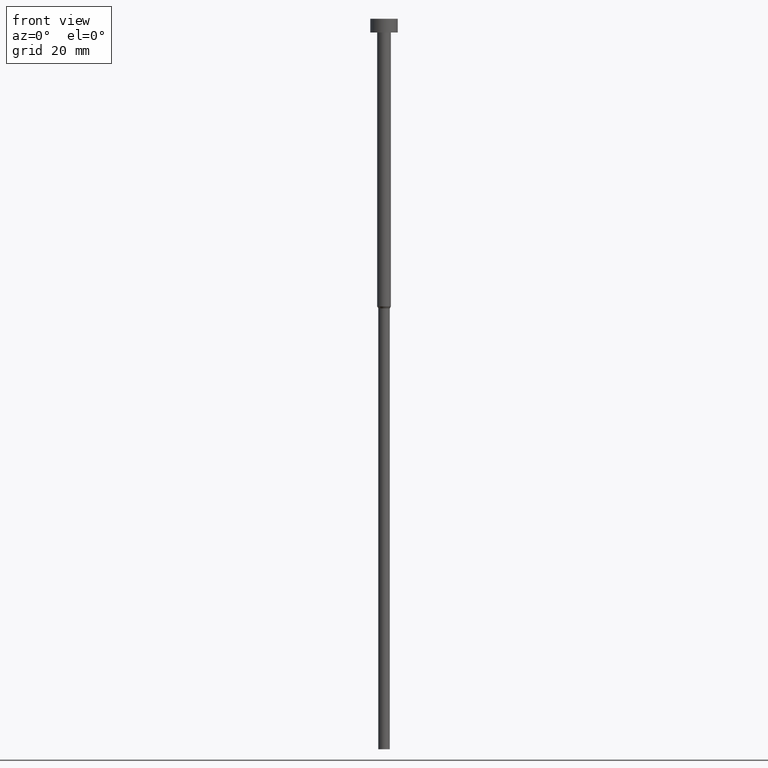
[diagram: clean part render]
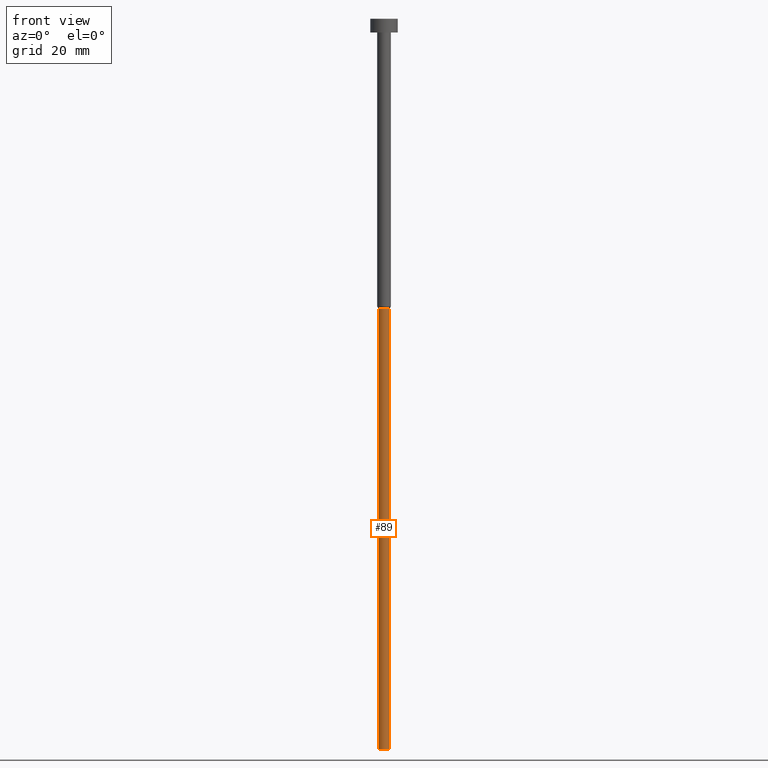
[diagram: same view with one face highlighted and labeled with its STEP entity id]
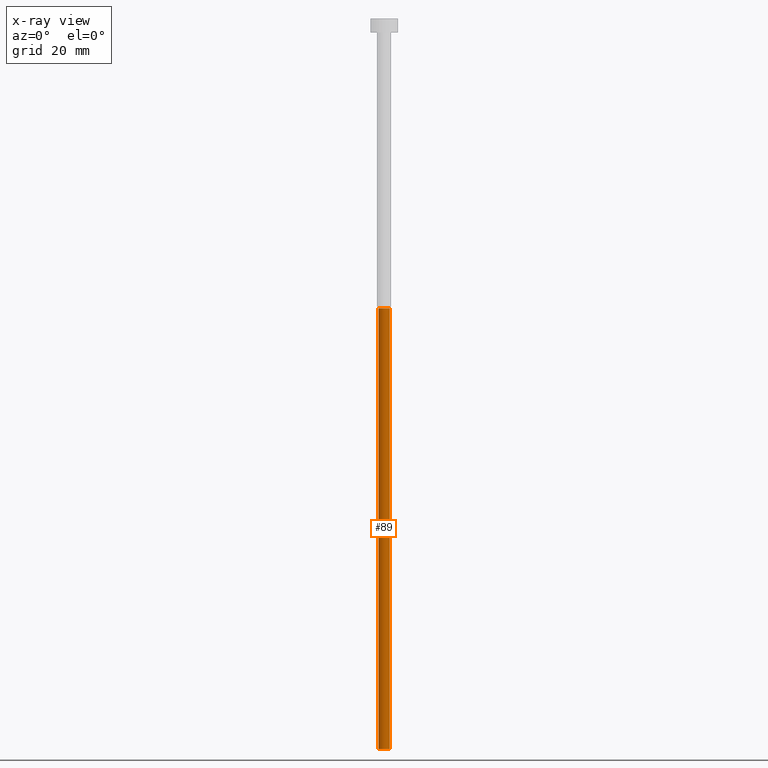
[diagram: x-ray of the same camera — body ghosted, the highlighted face saturated]
A machine part, front view. The second image highlights one B-rep face of the part: STEP entity #89.
The next image is the same camera in x-ray: the body ghosted, the highlighted face saturated — about 0% of this face is hidden behind the body in this view.
In plain terms, the highlighted cylindrical surface (edge-blend (fillet) strip) has radius 1.25 mm, axis along (-0, -0, 1).
Its self-contained STEP definition (entity closure, byte-faithful):
#5 = DIRECTION ( 'NONE',  ( -0.000000000000000000, -0.000000000000000000, 1.000000000000000000 ) ) ;
#16 = FACE_OUTER_BOUND ( 'NONE', #74, .T. ) ;
#22 = DIRECTION ( 'NONE',  ( -0.000000000000000000, -0.000000000000000000, 1.000000000000000000 ) ) ;
#60 = EDGE_CURVE ( 'NONE', #261, #96, #315, .T. ) ;
#74 = EDGE_LOOP ( 'NONE', ( #93, #209, #317, #175 ) ) ;
#75 = VECTOR ( 'NONE', #300, 1000.000000000000000 ) ;
#87 = LINE ( 'NONE', #196, #75 ) ;
#89 = ADVANCED_FACE ( 'NONE', ( #16 ), #123, .T. ) ;
#93 = ORIENTED_EDGE ( 'NONE', *, *, #218, .F. ) ;
#96 = VERTEX_POINT ( 'NONE', #320 ) ;
#97 = DIRECTION ( 'NONE',  ( -0.000000000000000000, -0.000000000000000000, 1.000000000000000000 ) ) ;
#103 = DIRECTION ( 'NONE',  ( 1.000000000000000000, 0.000000000000000000, 0.000000000000000000 ) ) ;
#107 = VECTOR ( 'NONE', #5, 1000.000000000000000 ) ;
#123 = CYLINDRICAL_SURFACE ( 'NONE', #295, 1.250000000000000000 ) ;
#125 = VERTEX_POINT ( 'NONE', #353 ) ;
#137 = DIRECTION ( 'NONE',  ( -0.000000000000000000, -0.000000000000000000, 1.000000000000000000 ) ) ;
#151 = VERTEX_POINT ( 'NONE', #197 ) ;
#154 = CARTESIAN_POINT ( 'NONE',  ( 0.000000000000000000, 0.000000000000000000, -63.43301270189222407 ) ) ;
#157 = AXIS2_PLACEMENT_3D ( 'NONE', #312, #137, #103 ) ;
#175 = ORIENTED_EDGE ( 'NONE', *, *, #60, .F. ) ;
#196 = CARTESIAN_POINT ( 'NONE',  ( 1.250000000000000000, 0.000000000000000000, 0.000000000000000000 ) ) ;
#197 = CARTESIAN_POINT ( 'NONE',  ( 1.250000000000000000, 0.000000000000000000, -160.0000000000000000 ) ) ;
#209 = ORIENTED_EDGE ( 'NONE', *, *, #302, .T. ) ;
#215 = DIRECTION ( 'NONE',  ( 1.000000000000000000, 0.000000000000000000, 0.000000000000000000 ) ) ;
#218 = EDGE_CURVE ( 'NONE', #125, #261, #349, .T. ) ;
#231 = CARTESIAN_POINT ( 'NONE',  ( -1.250000000000000000, 1.530808498934191571E-16, -63.43301270189222407 ) ) ;
#239 = CARTESIAN_POINT ( 'NONE',  ( 0.000000000000000000, 0.000000000000000000, 0.000000000000000000 ) ) ;
#254 = CARTESIAN_POINT ( 'NONE',  ( -1.250000000000000000, 1.530808498934191571E-16, 0.000000000000000000 ) ) ;
#261 = VERTEX_POINT ( 'NONE', #231 ) ;
#267 = AXIS2_PLACEMENT_3D ( 'NONE', #154, #22, #322 ) ;
#295 = AXIS2_PLACEMENT_3D ( 'NONE', #239, #97, #215 ) ;
#300 = DIRECTION ( 'NONE',  ( -0.000000000000000000, -0.000000000000000000, 1.000000000000000000 ) ) ;
#302 = EDGE_CURVE ( 'NONE', #125, #151, #340, .T. ) ;
#312 = CARTESIAN_POINT ( 'NONE',  ( 0.000000000000000000, 0.000000000000000000, -160.0000000000000000 ) ) ;
#315 = CIRCLE ( 'NONE', #267, 1.250000000000000000 ) ;
#317 = ORIENTED_EDGE ( 'NONE', *, *, #334, .T. ) ;
#320 = CARTESIAN_POINT ( 'NONE',  ( 1.250000000000000000, 0.000000000000000000, -63.43301270189222407 ) ) ;
#322 = DIRECTION ( 'NONE',  ( 1.000000000000000000, 0.000000000000000000, 0.000000000000000000 ) ) ;
#334 = EDGE_CURVE ( 'NONE', #151, #96, #87, .T. ) ;
#340 = CIRCLE ( 'NONE', #157, 1.250000000000000000 ) ;
#349 = LINE ( 'NONE', #254, #107 ) ;
#353 = CARTESIAN_POINT ( 'NONE',  ( -1.250000000000000000, 1.530808498934191571E-16, -160.0000000000000000 ) ) ;